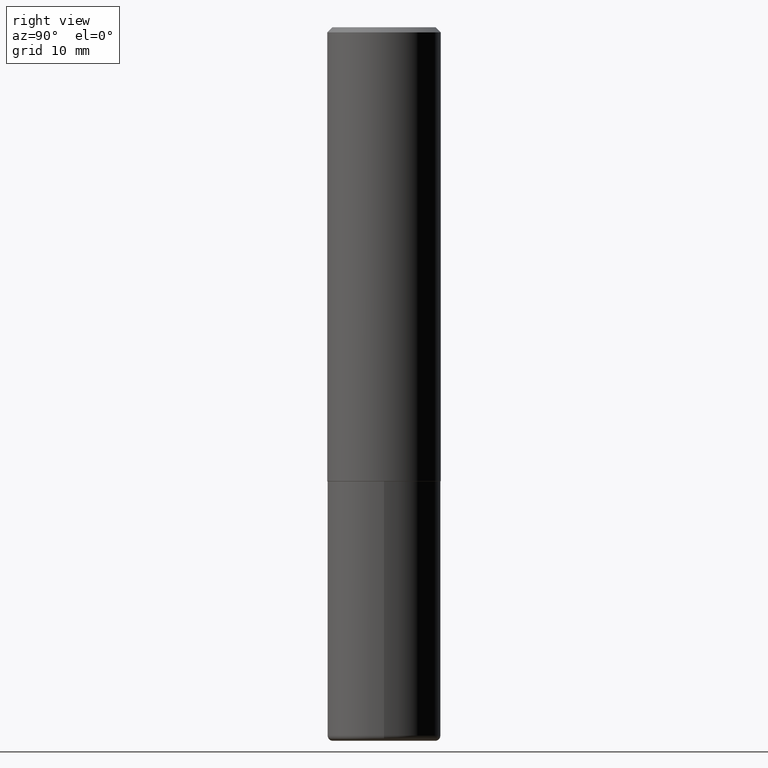
[diagram: clean part render]
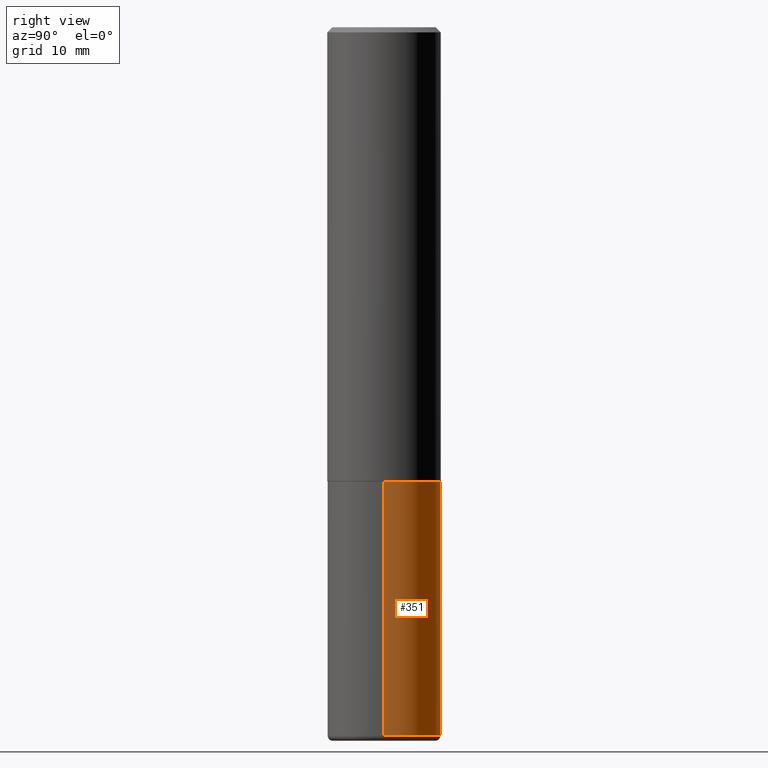
[diagram: same view with one face highlighted and labeled with its STEP entity id]
A machine part, right view. The second image highlights one B-rep face of the part: STEP entity #351.
In plain terms, the highlighted cylindrical surface (partial cylindrical patch) has radius 5.5562 mm, axis along (-0, 0, 1).
Its self-contained STEP definition (entity closure, byte-faithful):
#18 = ORIENTED_EDGE ( 'NONE', *, *, #177, .F. ) ;
#21 = EDGE_LOOP ( 'NONE', ( #350, #384, #18, #62 ) ) ;
#23 = DIRECTION ( 'NONE',  ( 1.000000000000000000, -6.982962677686266711E-15, 4.876176775795935232E-29 ) ) ;
#29 = FACE_OUTER_BOUND ( 'NONE', #21, .T. ) ;
#49 = EDGE_CURVE ( 'NONE', #318, #316, #159, .T. ) ;
#50 = DIRECTION ( 'NONE',  ( -2.445468806185136597E-29, 3.491481338843145583E-15, 1.000000000000000000 ) ) ;
#55 = CARTESIAN_POINT ( 'NONE',  ( 0.2187500000000000000, -1.527523085743870843E-15, 1.066663669705360885E-29 ) ) ;
#62 = ORIENTED_EDGE ( 'NONE', *, *, #233, .F. ) ;
#79 = CARTESIAN_POINT ( 'NONE',  ( 6.676129840885423672E-29, -9.531744055041786561E-15, -2.729999999999999982 ) ) ;
#81 = DIRECTION ( 'NONE',  ( 1.000000000000000000, -6.982962677686267499E-15, 0.000000000000000000 ) ) ;
#83 = DIRECTION ( 'NONE',  ( -2.445468806185136877E-29, 3.491481338843145188E-15, 1.000000000000000000 ) ) ;
#95 = VERTEX_POINT ( 'NONE', #208 ) ;
#125 = DIRECTION ( 'NONE',  ( -2.445468806185136877E-29, 3.491481338843145188E-15, 1.000000000000000000 ) ) ;
#157 = VERTEX_POINT ( 'NONE', #335 ) ;
#159 = LINE ( 'NONE', #411, #203 ) ;
#166 = AXIS2_PLACEMENT_3D ( 'NONE', #79, #50, #183 ) ;
#177 = EDGE_CURVE ( 'NONE', #157, #316, #196, .T. ) ;
#183 = DIRECTION ( 'NONE',  ( 1.000000000000000000, -6.982962677686262766E-15, 0.000000000000000000 ) ) ;
#193 = CYLINDRICAL_SURFACE ( 'NONE', #356, 0.2187500000000000000 ) ;
#196 = CIRCLE ( 'NONE', #391, 0.2187500000000000000 ) ;
#200 = EDGE_CURVE ( 'NONE', #95, #318, #362, .T. ) ;
#203 = VECTOR ( 'NONE', #125, 39.37007874015748143 ) ;
#208 = CARTESIAN_POINT ( 'NONE',  ( 0.2187499999999999445, -1.105926714078565662E-14, -2.729999999999999982 ) ) ;
#219 = DIRECTION ( 'NONE',  ( -2.445468806185136597E-29, 3.491481338843145583E-15, 1.000000000000000000 ) ) ;
#225 = CARTESIAN_POINT ( 'NONE',  ( 0.000000000000000000, 0.000000000000000000, 0.000000000000000000 ) ) ;
#233 = EDGE_CURVE ( 'NONE', #95, #157, #248, .T. ) ;
#241 = VECTOR ( 'NONE', #83, 39.37007874015748143 ) ;
#248 = LINE ( 'NONE', #55, #241 ) ;
#253 = CARTESIAN_POINT ( 'NONE',  ( -0.2187499999999999445, -7.977431820566568982E-15, -2.729999999999999982 ) ) ;
#282 = CARTESIAN_POINT ( 'NONE',  ( -0.2187500000000000000, -6.266605964533427643E-15, -1.750000000000000000 ) ) ;
#316 = VERTEX_POINT ( 'NONE', #282 ) ;
#318 = VERTEX_POINT ( 'NONE', #253 ) ;
#335 = CARTESIAN_POINT ( 'NONE',  ( 0.2187500000000000000, -7.637615428719375514E-15, -1.750000000000000000 ) ) ;
#338 = DIRECTION ( 'NONE',  ( -2.445468806185136597E-29, 3.491481338843145583E-15, 1.000000000000000000 ) ) ;
#350 = ORIENTED_EDGE ( 'NONE', *, *, #200, .T. ) ;
#351 = ADVANCED_FACE ( 'NONE', ( #29 ), #193, .T. ) ;
#356 = AXIS2_PLACEMENT_3D ( 'NONE', #225, #219, #23 ) ;
#362 = CIRCLE ( 'NONE', #166, 0.2187500000000000000 ) ;
#370 = CARTESIAN_POINT ( 'NONE',  ( 4.279570410823988484E-29, -6.110092342975504671E-15, -1.750000000000000000 ) ) ;
#384 = ORIENTED_EDGE ( 'NONE', *, *, #49, .T. ) ;
#391 = AXIS2_PLACEMENT_3D ( 'NONE', #370, #338, #81 ) ;
#411 = CARTESIAN_POINT ( 'NONE',  ( -0.2187500000000000000, 1.554312234475219157E-15, -1.076017050993260622E-29 ) ) ;